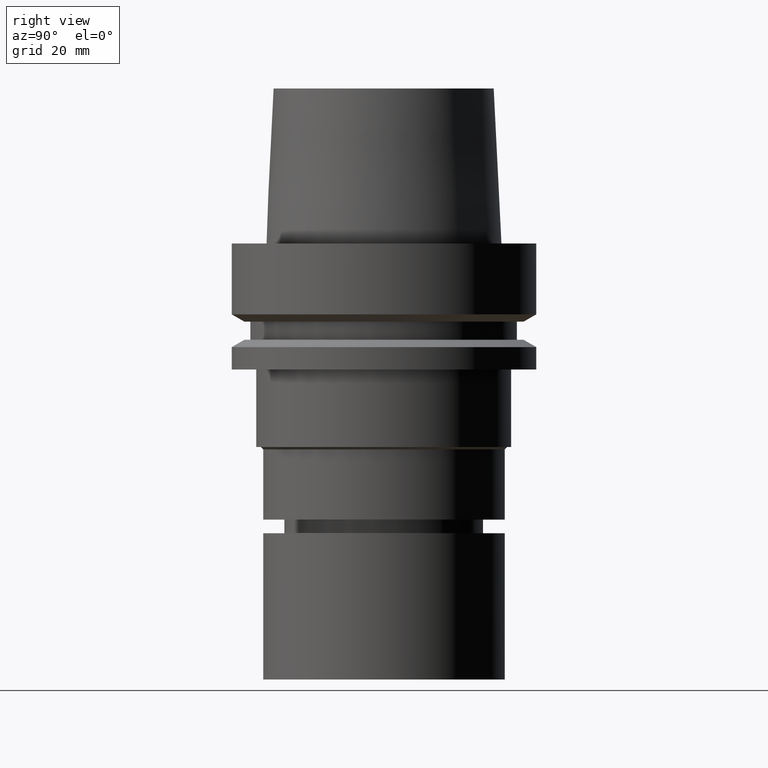
[diagram: clean part render]
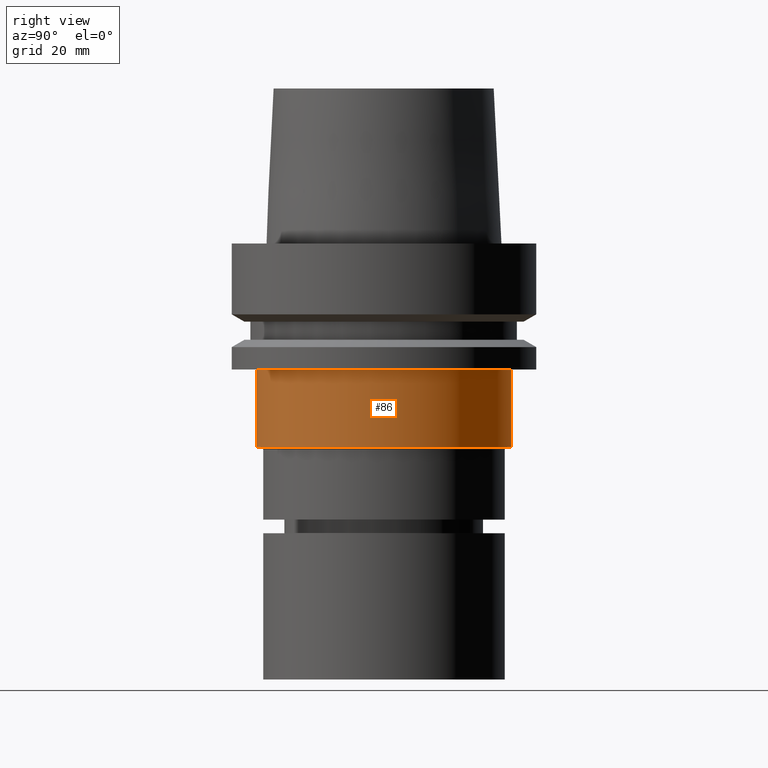
[diagram: same view with one face highlighted and labeled with its STEP entity id]
A machine part, right view. The second image highlights one B-rep face of the part: STEP entity #86.
In plain terms, the highlighted cylindrical surface (bore or boss wall) has radius 26.3 mm, axis along (-0, -0, 1).
Its self-contained STEP definition (entity closure, byte-faithful):
#86=ADVANCED_FACE('Unnamed[1]',(#229,#230),#231,.T.);
#141=EDGE_CURVE('Unnamed[1]',#311,#311,#312,.T.);
#198=EDGE_CURVE('Unnamed[1]',#402,#402,#403,.T.);
#229=FACE_BOUND('',#431,.T.);
#230=FACE_BOUND('',#432,.T.);
#231=CYLINDRICAL_SURFACE('',#433,26.3000000000001);
#311=VERTEX_POINT('',#533);
#312=CIRCLE('',#534,26.3);
#402=VERTEX_POINT('',#646);
#403=CIRCLE('',#647,26.3000000000001);
#431=EDGE_LOOP('',(#662));
#432=EDGE_LOOP('',(#663));
#433=AXIS2_PLACEMENT_3D('',#664,#665,#666);
#533=CARTESIAN_POINT('',(1.59204083889154E-015,26.3,-25.9999999999997));
#534=AXIS2_PLACEMENT_3D('',#750,#751,#752);
#646=CARTESIAN_POINT('',(2.57175827820944E-015,26.3000000000001,-41.9999999999999));
#647=AXIS2_PLACEMENT_3D('',#854,#855,#856);
#662=ORIENTED_EDGE('',*,*,#141,.F.);
#663=ORIENTED_EDGE('',*,*,#198,.T.);
#664=CARTESIAN_POINT('',(2.08189955855049E-015,4.16379911710097E-015,-33.9999999999998));
#665=DIRECTION('',(-6.12323399573677E-017,-1.22464679914735E-016,1.0));
#666=DIRECTION('',(-1.23259516440783E-032,1.0,1.22464679914735E-016));
#750=CARTESIAN_POINT('',(1.59204083889154E-015,3.18408167778308E-015,-25.9999999999997));
#751=DIRECTION('',(-6.12323399573677E-017,-1.22464679914735E-016,1.0));
#752=DIRECTION('',(-1.23259516440783E-032,1.0,1.22464679914735E-016));
#854=CARTESIAN_POINT('',(2.57175827820944E-015,5.14351655641887E-015,-41.9999999999999));
#855=DIRECTION('',(-6.12323399573677E-017,-1.22464679914735E-016,1.0));
#856=DIRECTION('',(-1.23259516440783E-032,1.0,1.22464679914735E-016));